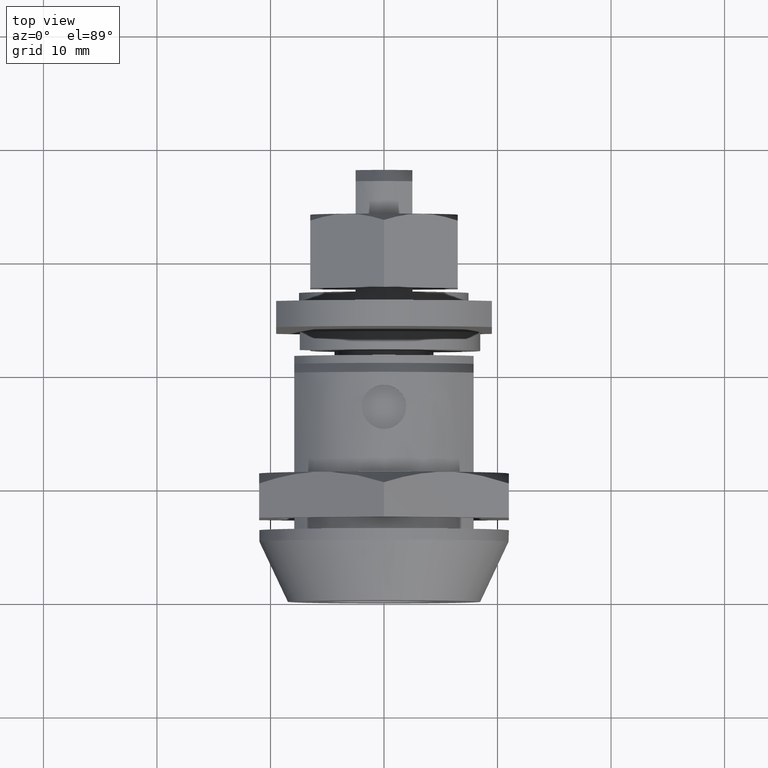
[diagram: clean part render]
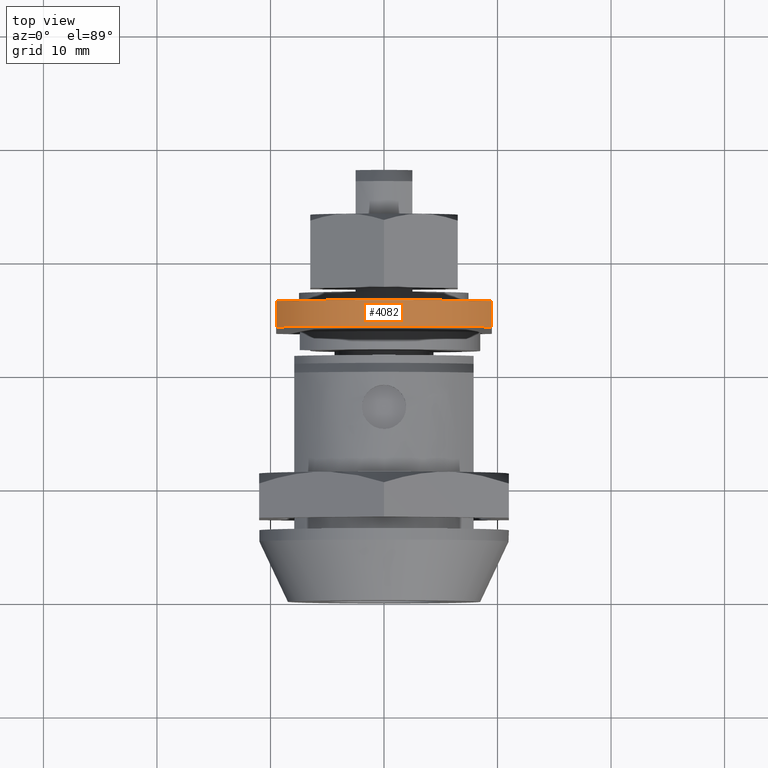
[diagram: same view with one face highlighted and labeled with its STEP entity id]
A machine part, top view. The second image highlights one B-rep face of the part: STEP entity #4082.
In plain terms, the highlighted face is a freeform B-spline surface patch.
Its self-contained STEP definition (entity closure, byte-faithful):
#3734=CARTESIAN_POINT('',(9.500003998973350,23.699999999999999,29.045261402268501));
#3735=VERTEX_POINT('',#3734);
#3741=CARTESIAN_POINT('',(-9.500000000000000,23.699999999999999,29.045268253204551));
#3742=VERTEX_POINT('',#3741);
#3743=CARTESIAN_POINT('',(9.500003998973350,23.699999999999999,29.045261402268501));
#3744=CARTESIAN_POINT('',(6.316011783816053,23.699999999999999,34.499997722601563));
#3745=CARTESIAN_POINT('',(0.000003966330559,23.699999999999999,34.499999999999282));
#3746=CARTESIAN_POINT('',(-6.316003851154928,23.699999999999999,34.500002277396995));
#3747=CARTESIAN_POINT('',(-9.500000000000000,23.699999999999999,29.045268253204551));
#3755=(BOUNDED_CURVE()B_SPLINE_CURVE(2,(#3743,#3744,#3745,#3746,#3747),.UNSPECIFIED.,.F.,.U.)B_SPLINE_CURVE_WITH_KNOTS((3,2,3),(0.0,0.500000000000000,1.0),.UNSPECIFIED.)CURVE()GEOMETRIC_REPRESENTATION_ITEM()RATIONAL_B_SPLINE_CURVE((1.0,0.867212483864168,1.0,0.867212483864168,1.0))REPRESENTATION_ITEM(''));
#3756=EDGE_CURVE('',#3735,#3742,#3755,.T.);
#3836=CARTESIAN_POINT('',(9.500003998973350,26.0,29.045261402268501));
#3837=VERTEX_POINT('',#3836);
#3860=CARTESIAN_POINT('',(-9.500000000000000,26.0,29.045268253204551));
#3861=VERTEX_POINT('',#3860);
#3867=CARTESIAN_POINT('',(9.500003998973350,26.0,29.045261402268501));
#3868=CARTESIAN_POINT('',(6.316011783816053,25.999999999999993,34.499997722601563));
#3869=CARTESIAN_POINT('',(0.000003966330559,26.0,34.499999999999282));
#3870=CARTESIAN_POINT('',(-6.316003851154928,25.999999999999993,34.500002277396995));
#3871=CARTESIAN_POINT('',(-9.500000000000000,26.0,29.045268253204551));
#3879=(BOUNDED_CURVE()B_SPLINE_CURVE(2,(#3867,#3868,#3869,#3870,#3871),.UNSPECIFIED.,.F.,.U.)B_SPLINE_CURVE_WITH_KNOTS((3,2,3),(0.0,0.500000000000000,1.0),.UNSPECIFIED.)CURVE()GEOMETRIC_REPRESENTATION_ITEM()RATIONAL_B_SPLINE_CURVE((1.0,0.867212483864168,1.0,0.867212483864168,1.0))REPRESENTATION_ITEM(''));
#3880=EDGE_CURVE('',#3837,#3861,#3879,.T.);
#4048=CARTESIAN_POINT('',(-9.500000000000000,26.0,29.045268253204551));
#4049=CARTESIAN_POINT('',(-9.500000000000000,23.699999999999999,29.045268253204551));
#4050=QUASI_UNIFORM_CURVE('',1,(#4048,#4049),.UNSPECIFIED.,.F.,.U.);
#4051=EDGE_CURVE('',#3861,#3742,#4050,.T.);
#4058=CARTESIAN_POINT('',(-9.691851047676034,26.057500000000001,28.702693847389160));
#4059=CARTESIAN_POINT('',(-9.691851047676034,23.641062500000000,28.702693847389160));
#4060=CARTESIAN_POINT('',(0.519010554136934,26.057499999999997,47.724022531349235));
#4061=CARTESIAN_POINT('',(0.519010554136934,23.641062500000000,47.724022531349235));
#4062=CARTESIAN_POINT('',(9.905794852307125,26.057500000000001,28.282805488832409));
#4063=CARTESIAN_POINT('',(9.905794852307125,23.641062500000000,28.282805488832409));
#4071=(BOUNDED_SURFACE()B_SPLINE_SURFACE(1,2,((#4058,#4060,#4062),(#4059,#4061,#4063)),.UNSPECIFIED.,.F.,.F.,.U.)B_SPLINE_SURFACE_WITH_KNOTS((2,2),(3,3),(0.0,2.416437500000004),(0.0,26.963234678157001),.UNSPECIFIED.)GEOMETRIC_REPRESENTATION_ITEM()RATIONAL_B_SPLINE_SURFACE(((1.0,0.453990499739547,1.0),(1.0,0.453990499739547,1.0)))REPRESENTATION_ITEM('')SURFACE());
#4072=ORIENTED_EDGE('',*,*,#3756,.F.);
#4073=CARTESIAN_POINT('',(9.500003998973350,26.0,29.045261402268501));
#4074=CARTESIAN_POINT('',(9.500003998973350,23.699999999999999,29.045261402268501));
#4075=QUASI_UNIFORM_CURVE('',1,(#4073,#4074),.UNSPECIFIED.,.F.,.U.);
#4076=EDGE_CURVE('',#3837,#3735,#4075,.T.);
#4077=ORIENTED_EDGE('',*,*,#4076,.F.);
#4078=ORIENTED_EDGE('',*,*,#3880,.T.);
#4079=ORIENTED_EDGE('',*,*,#4051,.T.);
#4080=EDGE_LOOP('',(#4072,#4077,#4078,#4079));
#4081=FACE_OUTER_BOUND('',#4080,.T.);
#4082=ADVANCED_FACE('',(#4081),#4071,.T.);